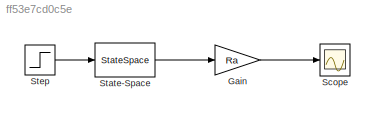
MODEL slx_ff53e7cd0c5e
KIND model
CONFIG AbsTol = auto
CONFIG EnableMultiTasking = on
CONFIG FixedStep = 0.01
CONFIG InitFcn = R=5.2;\nL=9.38e-4;\nJ=0.0072;\nB=3.89e-4;\nRa=0.05;\nkm=0.5931
CONFIG MaxStep = auto
CONFIG MinStep = auto
CONFIG RelTol = 1e-3
CONFIG SampleTimeConstraint = Unconstrained
CONFIG SolverName = VariableStepAuto
CONFIG StartTime = 0.0
CONFIG StopTime = 10.0
BLOCK [Gain] Gain
  Gain = Ra
BLOCK [Scope] Scope
  Floating = off
  NumInputPorts = 1
  ScopeSpecificationString = Simulink.scopes.TimeScopeBlockCfg('CurrentConfiguration', extmgr.ConfigurationSet(extmgr.Configuration('Core','General UI',true),extmgr.Configuration('Core','Source UI',true),extmgr.Configuration('Sources','WiredSimulink',true),extmgr.Configuration('Visuals','Time Domain',true,'SerializedDisplays',{struct('MinYLimReal','-0.05239','MaxYLimReal','0.47149','YLabelReal','','MinYLimMag','0.00000','MaxY...<+1324ch>
BLOCK [StateSpace] State-Space
  A = [-B/J km/J; -km/L -R/L]
  B = [0; 1/L]
  C = [1 0]
  D = 0
  InitialCondition = 0
BLOCK [Step] Step
  After = 5
  SampleTime = 0
LINE Gain:1 -> Scope:1
LINE State-Space:1 -> Gain:1
LINE Step:1 -> State-Space:1
